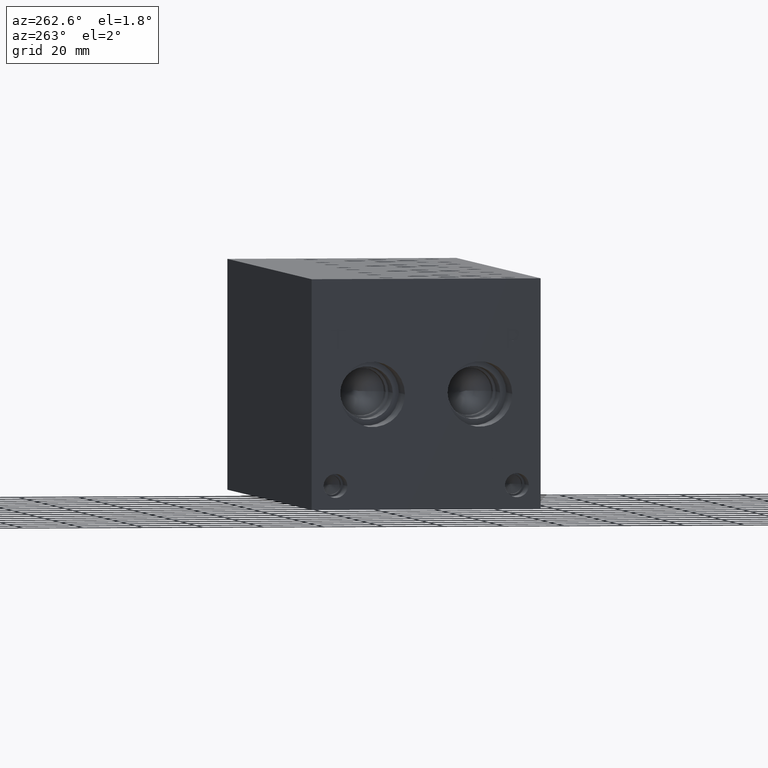
[diagram: clean part render]
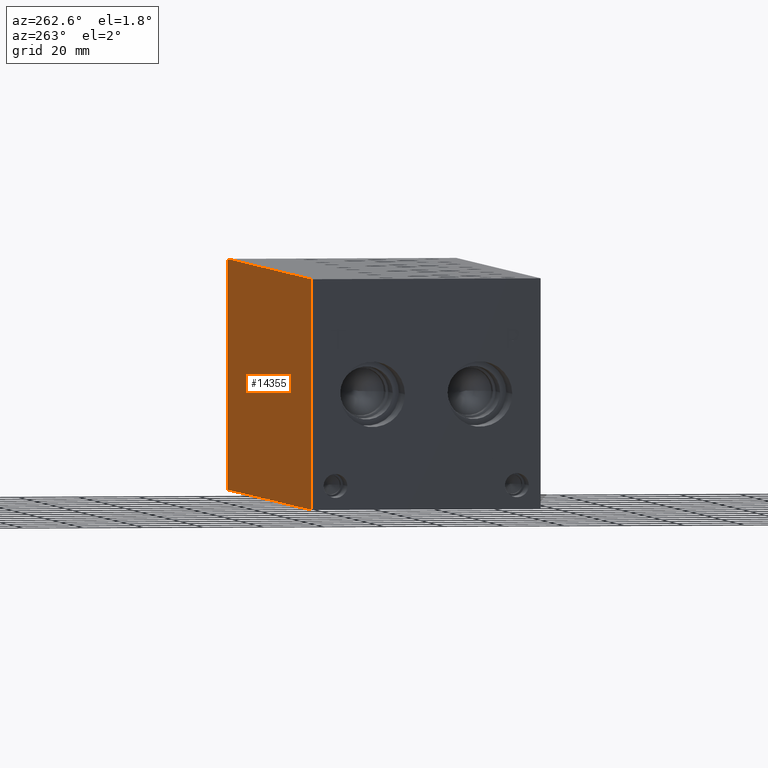
[diagram: same view with one face highlighted and labeled with its STEP entity id]
A machine part, auxiliary view. The second image highlights one B-rep face of the part: STEP entity #14355.
In plain terms, the highlighted planar face has unit normal (0, 1, 0).
Its self-contained STEP definition (entity closure, byte-faithful):
#1041=PLANE('',#15259);
#1780=FACE_OUTER_BOUND('',#2625,.T.);
#2625=EDGE_LOOP('',(#12821,#12822,#12823,#12824));
#3738=LINE('',#23374,#5044);
#3798=LINE('',#23647,#5104);
#3970=LINE('',#24673,#5276);
#3971=LINE('',#24674,#5277);
#5044=VECTOR('',#17080,10.);
#5104=VECTOR('',#17194,10.);
#5276=VECTOR('',#18342,10.);
#5277=VECTOR('',#18343,10.);
#6574=VERTEX_POINT('',#23371);
#6575=VERTEX_POINT('',#23373);
#6632=VERTEX_POINT('',#23643);
#6633=VERTEX_POINT('',#23645);
#8418=EDGE_CURVE('',#6574,#6575,#3738,.T.);
#8502=EDGE_CURVE('',#6632,#6633,#3798,.T.);
#8971=EDGE_CURVE('',#6574,#6632,#3970,.T.);
#8972=EDGE_CURVE('',#6575,#6633,#3971,.T.);
#12821=ORIENTED_EDGE('',*,*,#8971,.T.);
#12822=ORIENTED_EDGE('',*,*,#8502,.T.);
#12823=ORIENTED_EDGE('',*,*,#8972,.F.);
#12824=ORIENTED_EDGE('',*,*,#8418,.F.);
#14355=ADVANCED_FACE('',(#1780),#1041,.T.);
#15259=AXIS2_PLACEMENT_3D('',#24672,#18340,#18341);
#17080=DIRECTION('',(0.,0.,1.));
#17194=DIRECTION('',(0.,0.,1.));
#18340=DIRECTION('center_axis',(0.,1.,0.));
#18341=DIRECTION('ref_axis',(-1.,0.,0.));
#18342=DIRECTION('',(-1.,0.,0.));
#18343=DIRECTION('',(-1.,0.,0.));
#23371=CARTESIAN_POINT('',(215.9,76.2,0.));
#23373=CARTESIAN_POINT('',(215.9,76.2,76.2));
#23374=CARTESIAN_POINT('',(215.9,76.2,0.));
#23643=CARTESIAN_POINT('',(0.,76.2,0.));
#23645=CARTESIAN_POINT('',(0.,76.2,76.2));
#23647=CARTESIAN_POINT('',(0.,76.2,0.));
#24672=CARTESIAN_POINT('Origin',(215.9,76.2,0.));
#24673=CARTESIAN_POINT('',(215.9,76.2,0.));
#24674=CARTESIAN_POINT('',(215.9,76.2,76.2));